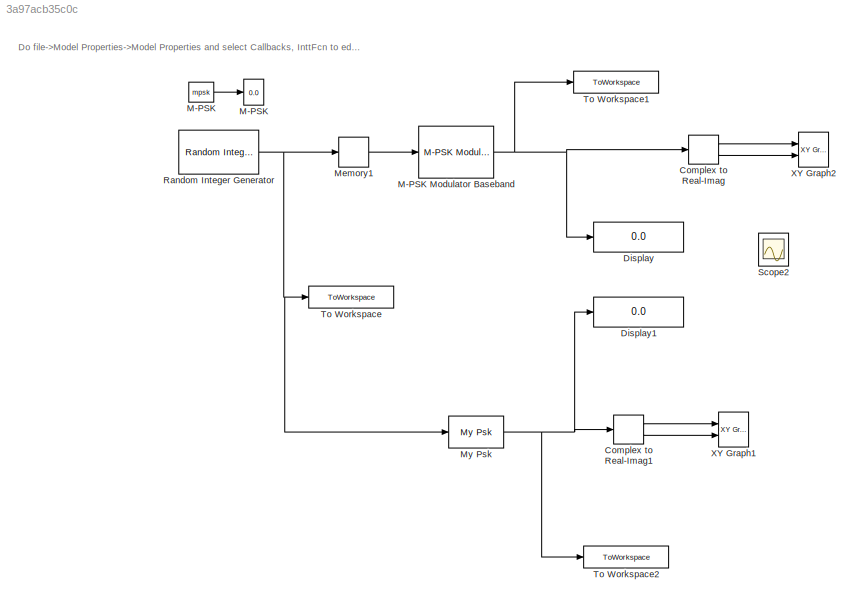
MODEL slx_3a97acb35c0c
KIND model
CONFIG InitFcn = mpsk = 4;\nFs = 915000000;
BLOCK [ComplexToRealImag] Complex to Real-Imag
  Ports = [1, 2]
BLOCK [ComplexToRealImag] Complex to Real-Imag1
  Ports = [1, 2]
BLOCK [Display] Display
  Decimation = 1
  Ports = [1]
BLOCK [Display] Display1
  Decimation = 1
  Ports = [1]
BLOCK [Display] M-PSK
  Decimation = 1
  Ports = [1]
BLOCK [Constant] M-PSK 
  Value = mpsk
BLOCK [Reference] M-PSK Modulator Baseband  REF=commdigbbndpm3/M-PSK
Modulator
Baseband
  Enc = Binary
  InType = Integer
  M = mpsk
  Mapping = [0:7]
  Ph = pi/4
  Ports = [1, 1]
  SourceBlock = commdigbbndpm3/M-PSK\nModulator\nBaseband
  SourceType = M-PSK Modulator Baseband
  outDtype = double
  outFracLen = 15
  outFracLenMode = Best precision
  outUDDataType = sfix(16)
  outWordLen = 16
BLOCK [Memory] Memory1
  InheritSampleTime = on
  LinearizeMemory = on
BLOCK [Reference] My Psk  REF=siglabs_lib/My Psk
  Ports = [1, 1]
  SampsPerSym = 8
  SourceBlock = siglabs_lib/My Psk
BLOCK [Reference] Random Integer Generator  REF=commrandsrc2/Random Integer
Generator
  Ports = [0, 1]
  SourceBlock = commrandsrc2/Random Integer\nGenerator
  SourceType = Random Integer Generator
  Ts = .1
  frameBased = off
  mul = mpsk
  orient = off
  outDataType = double
  sampPerFrame = 1
  seed = 43
BLOCK [Scope] Scope2
  Floating = off
  NumInputPorts = 2
  Ports = [2]
  ShowLegends = off
  YMax = 5~5
  YMin = -5~-5
BLOCK [ToWorkspace] To Workspace
  MaxDataPoints = inf
  Ports = [1]
  SampleTime = -1
  Save2DSignal = 2-D array (concatenate along first dimension)
  VariableName = random_int
BLOCK [ToWorkspace] To Workspace1
  MaxDataPoints = inf
  Ports = [1]
  SampleTime = -1
  Save2DSignal = 2-D array (concatenate along first dimension)
  VariableName = psk
BLOCK [ToWorkspace] To Workspace2
  MaxDataPoints = inf
  Ports = [1]
  SampleTime = -1
  Save2DSignal = 2-D array (concatenate along first dimension)
  VariableName = test1
BLOCK [Reference] XY Graph1  REF=simulink/Sinks/XY Graph
  Ports = [2]
  SourceBlock = simulink/Sinks/XY Graph
  SourceType = XY scope.
  st = -1
  xmax = 1
  xmin = -1
  ymax = 1
  ymin = -1
BLOCK [Reference] XY Graph2  REF=simulink/Sinks/XY Graph
  Ports = [2]
  SourceBlock = simulink/Sinks/XY Graph
  SourceType = XY scope.
  st = -1
  xmax = 1
  xmin = -1
  ymax = 1
  ymin = -1
ANNOTATION (root): Do file->Model Properties->Model Properties and select Callbacks, InttFcn to edit the number of M-PSK
LINE Complex to Real-Imag1:1 -> XY Graph1:1
LINE Complex to Real-Imag1:2 -> XY Graph1:2
LINE Complex to Real-Imag:1 -> XY Graph2:1
LINE Complex to Real-Imag:2 -> XY Graph2:2
LINE M-PSK :1 -> M-PSK:1
NET M-PSK Modulator Baseband:1 -> Complex to Real-Imag:1, Display:1, To Workspace1:1
LINE Memory1:1 -> M-PSK Modulator Baseband:1
NET My Psk:1 -> Complex to Real-Imag1:1, Display1:1, To Workspace2:1
NET Random Integer Generator:1 -> Memory1:1, My Psk:1, To Workspace:1
note: NET lines group one-source signal fan-out (src -> all destinations, sorted); 1:1 wires keep LINE
